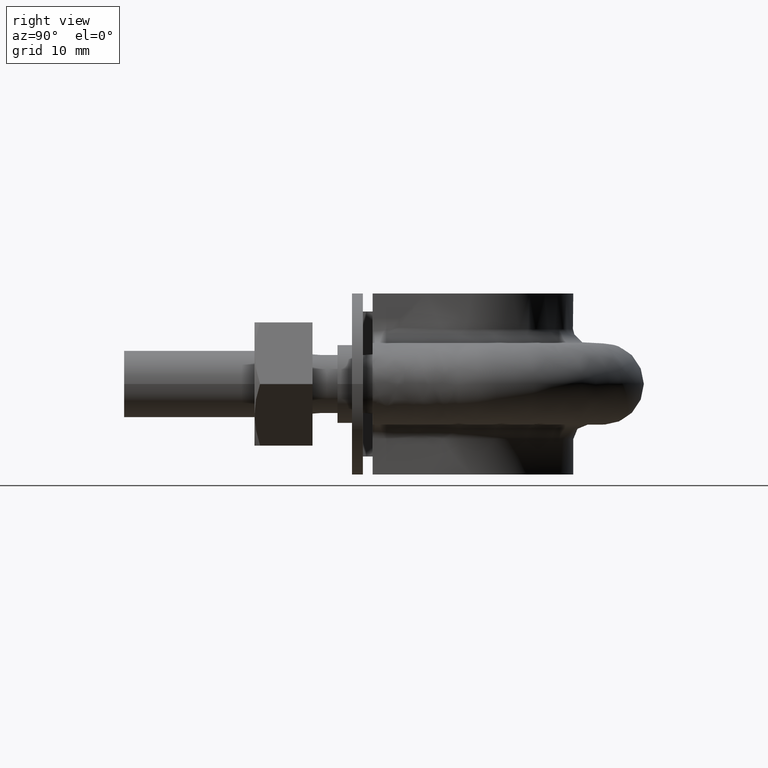
[diagram: clean part render]
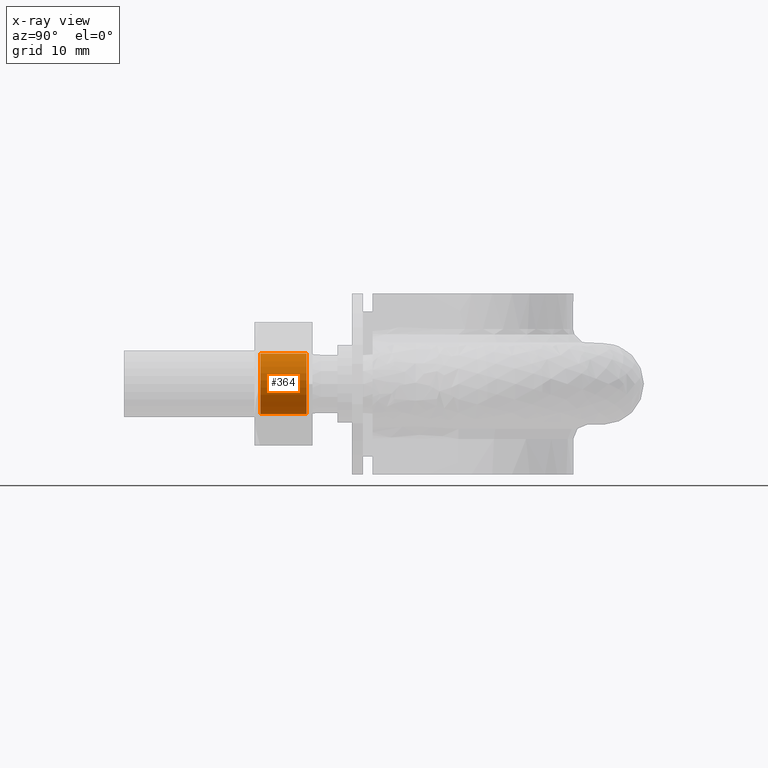
[diagram: x-ray — body ghosted, one internal face saturated and labeled with its STEP entity id]
A machine part, right view, then the same camera in x-ray: the body is ghosted and one INTERNAL B-rep face — a face not visible from any outside direction — is saturated and labeled: STEP entity #364.
In plain terms, the highlighted cylindrical surface (bore or boss wall) has radius 4.188 mm, axis along (-0, -1, -0).
Its self-contained STEP definition (entity closure, byte-faithful):
#364 = ADVANCED_FACE( '', ( #590, #591 ), #592, .F. );
#590 = FACE_OUTER_BOUND( '', #1697, .T. );
#591 = FACE_OUTER_BOUND( '', #1698, .T. );
#592 = CYLINDRICAL_SURFACE( '', #1699, 4.18800000000000 );
#1697 = EDGE_LOOP( '', ( #2441 ) );
#1698 = EDGE_LOOP( '', ( #2442 ) );
#1699 = AXIS2_PLACEMENT_3D( '', #2443, #2444, #2445 );
#2441 = ORIENTED_EDGE( '', *, *, #2664, .T. );
#2442 = ORIENTED_EDGE( '', *, *, #2663, .F. );
#2443 = CARTESIAN_POINT( '', ( 20.0000000000000, 26.0000000000000, 1.59198825996909E-015 ) );
#2444 = DIRECTION( '', ( -4.89842541528951E-016, -1.00000000000000, -6.12303176911189E-017 ) );
#2445 = DIRECTION( '', ( -2.31648034088039E-013, 6.12303176912323E-017, -1.00000000000000 ) );
#2663 = EDGE_CURVE( '', #3021, #3021, #3022, .T. );
#2664 = EDGE_CURVE( '', #3023, #3023, #3024, .T. );
#3021 = VERTEX_POINT( '', #3813 );
#3022 = CIRCLE( '', #3814, 4.18800000000000 );
#3023 = VERTEX_POINT( '', #3815 );
#3024 = CIRCLE( '', #3816, 4.18800000000000 );
#3813 = CARTESIAN_POINT( '', ( 19.9999999999990, 18.8120000000021, -4.18800000000000 ) );
#3814 = AXIS2_PLACEMENT_3D( '', #4117, #4118, #4119 );
#3815 = CARTESIAN_POINT( '', ( 19.9999999999990, 25.1880000000002, -4.18800000000000 ) );
#3816 = AXIS2_PLACEMENT_3D( '', #4120, #4121, #4122 );
#4117 = CARTESIAN_POINT( '', ( 20.0000000000000, 18.8120000000021, 1.15186473640545E-015 ) );
#4118 = DIRECTION( '', ( 4.89842541528951E-016, 1.00000000000000, 6.12303176911189E-017 ) );
#4119 = DIRECTION( '', ( -2.31648034088039E-013, 6.12303176912323E-017, -1.00000000000000 ) );
#4120 = CARTESIAN_POINT( '', ( 20.0000000000000, 25.1880000000002, 1.54226924200392E-015 ) );
#4121 = DIRECTION( '', ( 4.89842541528951E-016, 1.00000000000000, 6.12303176911189E-017 ) );
#4122 = DIRECTION( '', ( -2.31648034088039E-013, 6.12303176912323E-017, -1.00000000000000 ) );